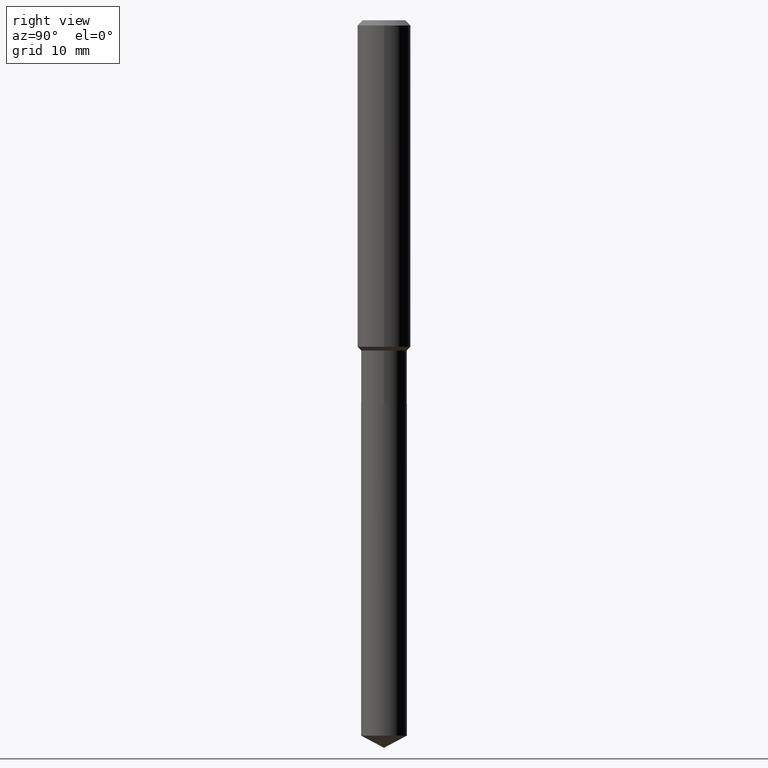
[diagram: clean part render]
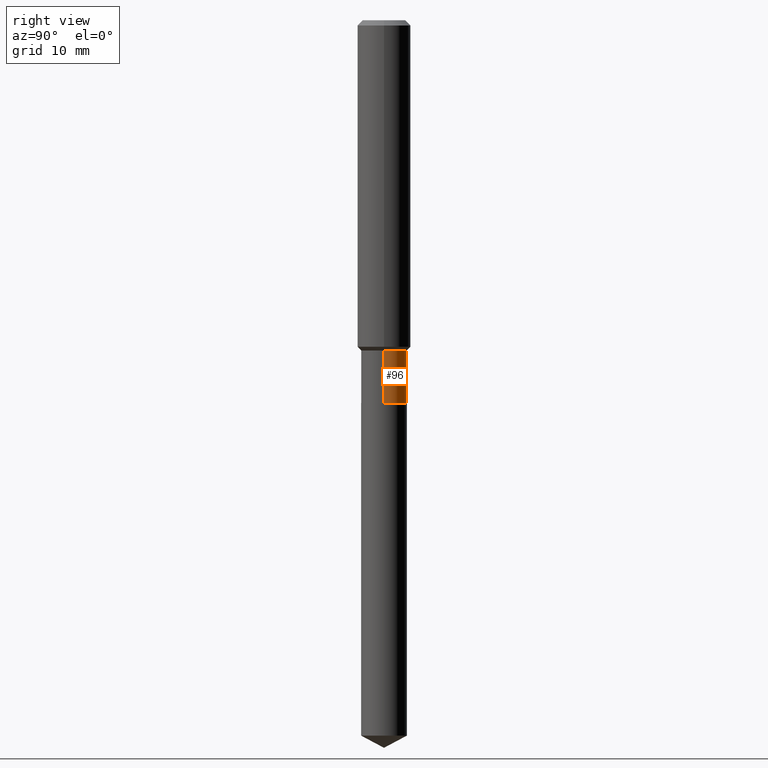
[diagram: same view with one face highlighted and labeled with its STEP entity id]
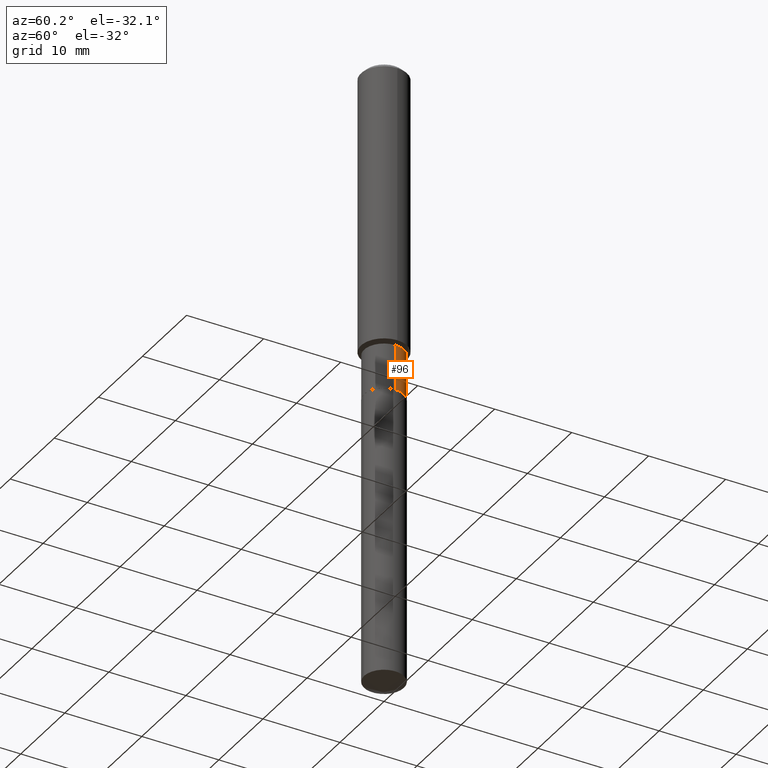
[diagram: same view with one face highlighted and labeled with its STEP entity id]
A machine part, right view. The second image highlights one B-rep face of the part: STEP entity #96.
A second angle (auxiliary view) of the same face is appended — the face is thin or edge-on in the first view.
In plain terms, the highlighted cylindrical surface (edge-blend (fillet) strip) has radius 2.5794 mm, axis along (-0, 0, 1).
Its self-contained STEP definition (entity closure, byte-faithful):
#12 = DIRECTION ( 'NONE',  ( -2.445468806185136877E-29, 3.491481338843145188E-15, 1.000000000000000000 ) ) ;
#18 = CIRCLE ( 'NONE', #61, 0.1015500000000000014 ) ;
#20 = EDGE_CURVE ( 'NONE', #301, #30, #18, .T. ) ;
#22 = DIRECTION ( 'NONE',  ( 1.000000000000000000, -6.982962677686266711E-15, 0.000000000000000000 ) ) ;
#30 = VERTEX_POINT ( 'NONE', #294 ) ;
#31 = EDGE_CURVE ( 'NONE', #301, #267, #63, .T. ) ;
#45 = DIRECTION ( 'NONE',  ( 1.000000000000000000, -6.982962677686266711E-15, 4.876176775795935793E-29 ) ) ;
#54 = CIRCLE ( 'NONE', #113, 0.1015499999999999736 ) ;
#58 = VERTEX_POINT ( 'NONE', #436 ) ;
#61 = AXIS2_PLACEMENT_3D ( 'NONE', #391, #309, #456 ) ;
#63 = LINE ( 'NONE', #291, #258 ) ;
#84 = CYLINDRICAL_SURFACE ( 'NONE', #366, 0.1015499999999999875 ) ;
#92 = LINE ( 'NONE', #136, #233 ) ;
#96 = ADVANCED_FACE ( 'NONE', ( #275 ), #84, .T. ) ;
#113 = AXIS2_PLACEMENT_3D ( 'NONE', #179, #332, #22 ) ;
#136 = CARTESIAN_POINT ( 'NONE',  ( -0.1015499999999999875, 7.215561481643816499E-16, -4.995178584153856401E-30 ) ) ;
#138 = DIRECTION ( 'NONE',  ( -2.445468806185136877E-29, 3.491481338843145188E-15, 1.000000000000000000 ) ) ;
#144 = ORIENTED_EDGE ( 'NONE', *, *, #232, .T. ) ;
#179 = CARTESIAN_POINT ( 'NONE',  ( 3.583834535464318409E-29, -5.116765902074630486E-15, -1.465500000000000247 ) ) ;
#184 = ORIENTED_EDGE ( 'NONE', *, *, #410, .F. ) ;
#232 = EDGE_CURVE ( 'NONE', #30, #58, #92, .T. ) ;
#233 = VECTOR ( 'NONE', #12, 39.37007874015748143 ) ;
#258 = VECTOR ( 'NONE', #138, 39.37007874015748143 ) ;
#267 = VERTEX_POINT ( 'NONE', #355 ) ;
#275 = FACE_OUTER_BOUND ( 'NONE', #352, .T. ) ;
#291 = CARTESIAN_POINT ( 'NONE',  ( 0.1015499999999999875, -7.091198599190402890E-16, 4.951757515820772372E-30 ) ) ;
#294 = CARTESIAN_POINT ( 'NONE',  ( -0.1015500000000000014, -4.802141903952417194E-15, -1.698600000000000332 ) ) ;
#301 = VERTEX_POINT ( 'NONE', #399 ) ;
#309 = DIRECTION ( 'NONE',  ( -2.445468806185136597E-29, 3.491481338843145583E-15, 1.000000000000000000 ) ) ;
#332 = DIRECTION ( 'NONE',  ( -2.445468806185136597E-29, 3.491481338843145583E-15, 1.000000000000000000 ) ) ;
#335 = ORIENTED_EDGE ( 'NONE', *, *, #31, .F. ) ;
#344 = CARTESIAN_POINT ( 'NONE',  ( 0.000000000000000000, 0.000000000000000000, 0.000000000000000000 ) ) ;
#352 = EDGE_LOOP ( 'NONE', ( #382, #144, #184, #335 ) ) ;
#355 = CARTESIAN_POINT ( 'NONE',  ( 0.1015499999999999736, -5.825885761993670479E-15, -1.465500000000000247 ) ) ;
#366 = AXIS2_PLACEMENT_3D ( 'NONE', #344, #419, #45 ) ;
#382 = ORIENTED_EDGE ( 'NONE', *, *, #20, .T. ) ;
#391 = CARTESIAN_POINT ( 'NONE',  ( 4.153873314186073379E-29, -5.930630202158967793E-15, -1.698600000000000332 ) ) ;
#399 = CARTESIAN_POINT ( 'NONE',  ( 0.1015500000000000014, -6.639750062078007786E-15, -1.698600000000000332 ) ) ;
#410 = EDGE_CURVE ( 'NONE', #267, #58, #54, .T. ) ;
#419 = DIRECTION ( 'NONE',  ( -2.445468806185136597E-29, 3.491481338843145583E-15, 1.000000000000000000 ) ) ;
#436 = CARTESIAN_POINT ( 'NONE',  ( -0.1015499999999999736, -4.802141903952417194E-15, -1.465500000000000247 ) ) ;
#456 = DIRECTION ( 'NONE',  ( 1.000000000000000000, -6.982962677686264344E-15, 0.000000000000000000 ) ) ;